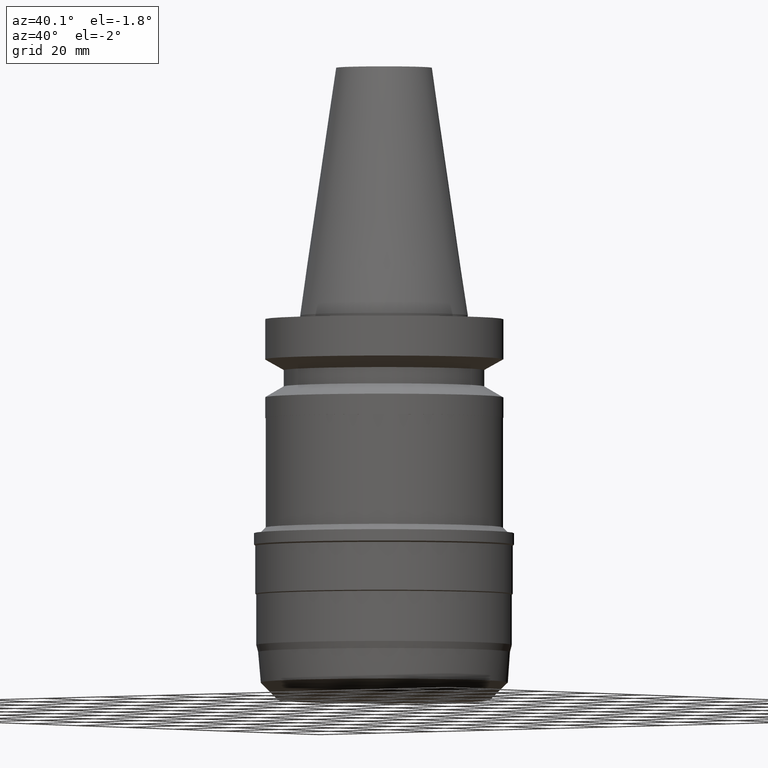
[diagram: clean part render]
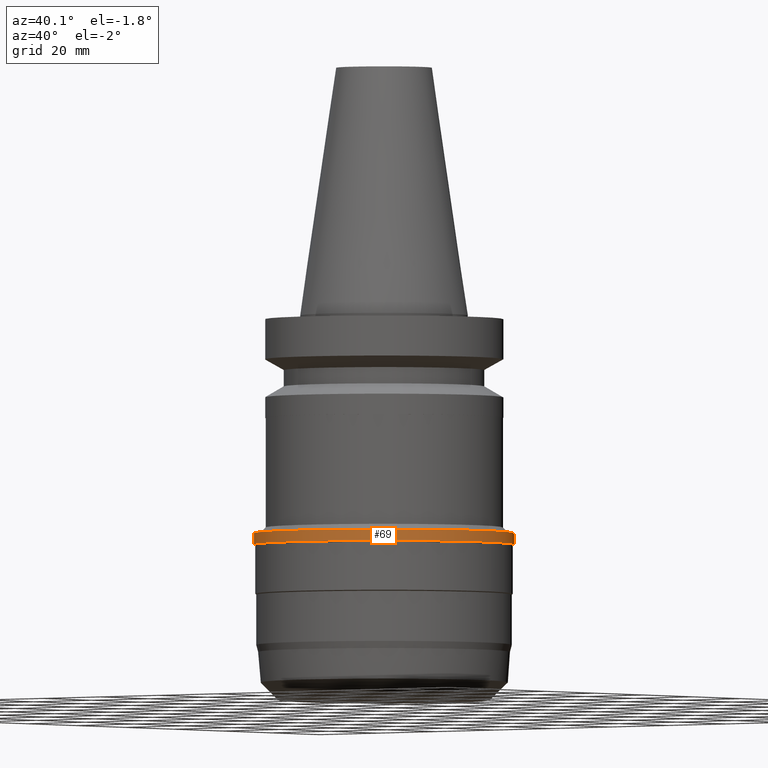
[diagram: same view with one face highlighted and labeled with its STEP entity id]
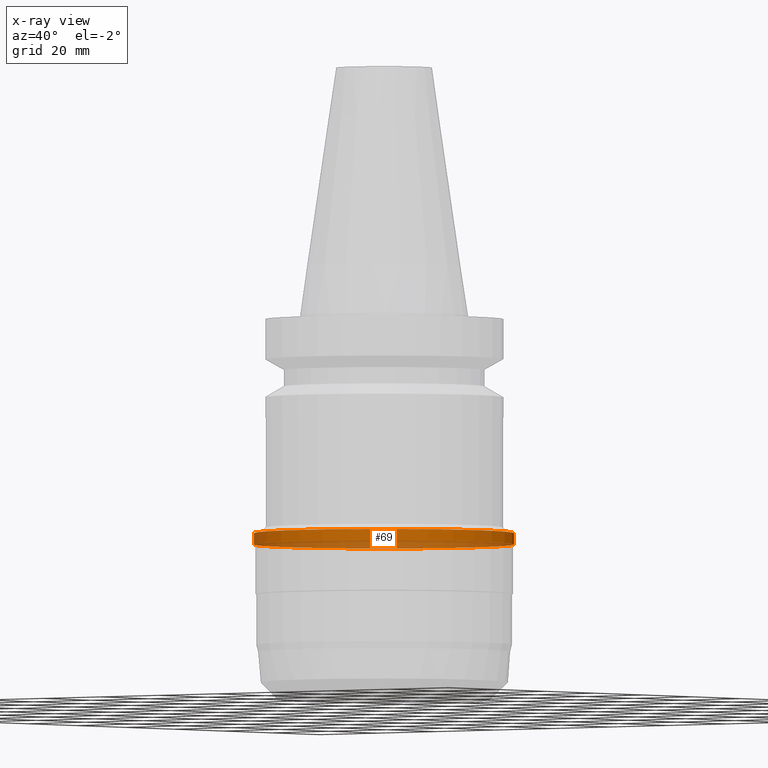
[diagram: x-ray of the same camera — body ghosted, the highlighted face saturated]
A machine part, auxiliary view. The second image highlights one B-rep face of the part: STEP entity #69.
The next image is the same camera in x-ray: the body ghosted, the highlighted face saturated — about 35% of this face is hidden behind the body in this view.
In plain terms, the highlighted cylindrical surface (bore or boss wall) has radius 34.35 mm, axis along (0, 0, -1).
Its self-contained STEP definition (entity closure, byte-faithful):
#69=ADVANCED_FACE('Unnamed[1]',(#196,#197),#198,.T.);
#99=EDGE_CURVE('Unnamed[1]',#243,#243,#244,.T.);
#128=EDGE_CURVE('Unnamed[1]',#288,#288,#289,.T.);
#196=FACE_BOUND('',#377,.T.);
#197=FACE_BOUND('',#378,.T.);
#198=CYLINDRICAL_SURFACE('',#379,34.35);
#243=VERTEX_POINT('',#435);
#244=CIRCLE('',#436,34.35);
#288=VERTEX_POINT('',#492);
#289=CIRCLE('',#493,34.35);
#377=EDGE_LOOP('',(#593));
#378=EDGE_LOOP('',(#594));
#379=AXIS2_PLACEMENT_3D('',#595,#596,#597);
#435=CARTESIAN_POINT('',(3.70455656742074E-015,34.35,-60.5));
#436=AXIS2_PLACEMENT_3D('',#644,#645,#646);
#492=CARTESIAN_POINT('',(3.52085954754864E-015,34.35,-57.5));
#493=AXIS2_PLACEMENT_3D('',#694,#695,#696);
#593=ORIENTED_EDGE('',*,*,#99,.F.);
#594=ORIENTED_EDGE('',*,*,#128,.T.);
#595=CARTESIAN_POINT('',(3.61270805748469E-015,7.22541611496938E-015,-59.0));
#596=DIRECTION('',(6.12323399573677E-017,1.22464679914757E-016,-1.0));
#597=DIRECTION('',(-1.23259516440804E-032,1.0,1.22464679914757E-016));
#644=CARTESIAN_POINT('',(3.70455656742074E-015,7.40911313484148E-015,-60.5));
#645=DIRECTION('',(6.12323399573677E-017,1.22464679914757E-016,-1.0));
#646=DIRECTION('',(-1.23259516440804E-032,1.0,1.22464679914757E-016));
#694=CARTESIAN_POINT('',(3.52085954754864E-015,7.04171909509728E-015,-57.5));
#695=DIRECTION('',(6.12323399573677E-017,1.22464679914757E-016,-1.0));
#696=DIRECTION('',(-1.23259516440804E-032,1.0,1.22464679914757E-016));